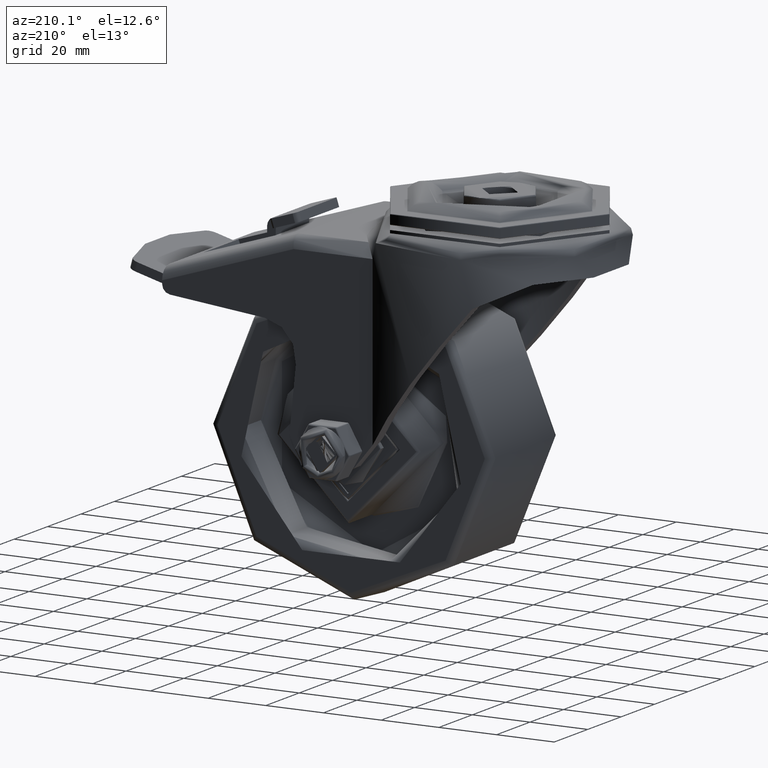
[diagram: clean part render]
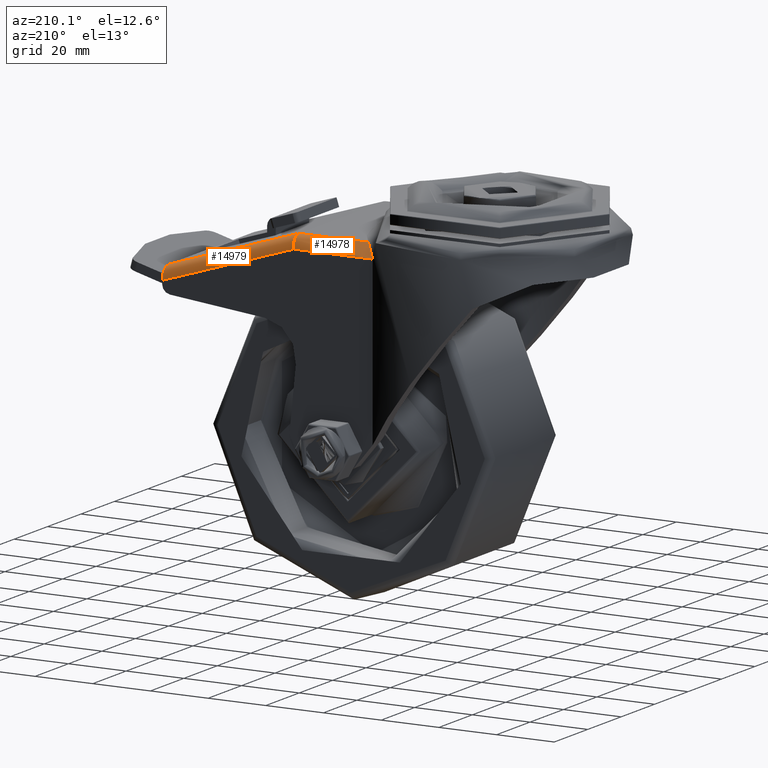
[diagram: same view with one multi-face feature highlighted, each face labeled with its STEP entity id]
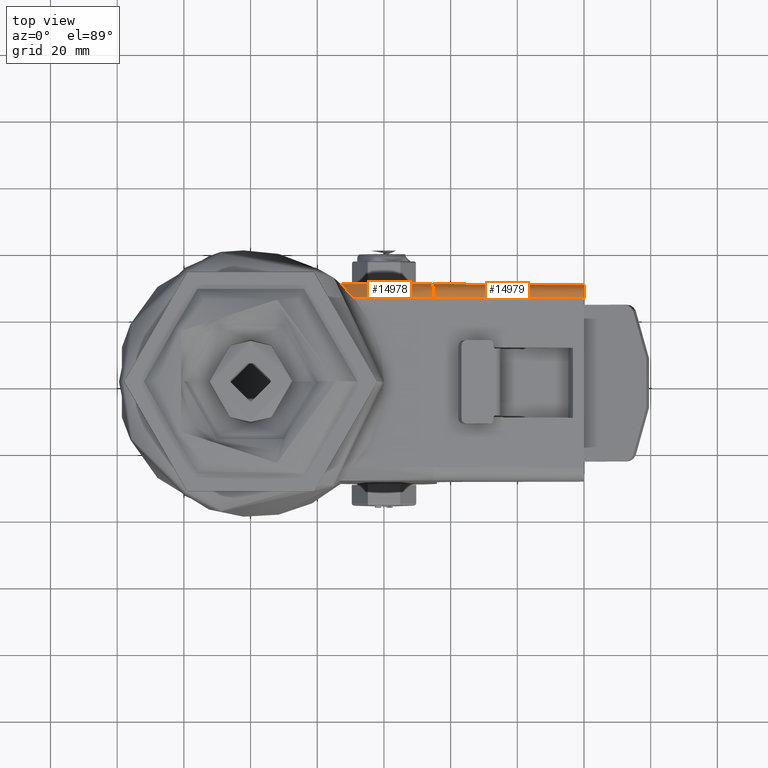
[diagram: same view with one multi-face feature highlighted, each face labeled with its STEP entity id]
A machine part, auxiliary view. The highlighted faces form ONE feature: a constant-radius fillet chain: 2 tangent blend faces with common blend radius 4 mm. The faces share edges in the B-rep.
A second angle (top view) of the same feature is appended — it is thin or edge-on in the first view.
Their STEP definitions:
[1] entity #14979 (Cylinder):
#495=ELLIPSE('',#16336,4.0490805380059,4.);
#496=ELLIPSE('',#16338,4.20252716444537,4.);
#1864=FACE_OUTER_BOUND('',#2763,.T.);
#2763=EDGE_LOOP('',(#10899,#10900,#10901,#10902));
#3826=LINE('',#22531,#4885);
#3827=LINE('',#22532,#4886);
#4885=VECTOR('',#18346,999.999999999999);
#4886=VECTOR('',#18347,999.999999999999);
#6682=VERTEX_POINT('',#22522);
#6683=VERTEX_POINT('',#22524);
#6684=VERTEX_POINT('',#22528);
#6685=VERTEX_POINT('',#22529);
#8295=EDGE_CURVE('',#6683,#6682,#495,.T.);
#8297=EDGE_CURVE('',#6684,#6685,#496,.T.);
#8298=EDGE_CURVE('',#6685,#6683,#3826,.T.);
#8299=EDGE_CURVE('',#6682,#6684,#3827,.T.);
#10899=ORIENTED_EDGE('',*,*,#8297,.T.);
#10900=ORIENTED_EDGE('',*,*,#8298,.T.);
#10901=ORIENTED_EDGE('',*,*,#8295,.T.);
#10902=ORIENTED_EDGE('',*,*,#8299,.T.);
#14653=CYLINDRICAL_SURFACE('',#16337,4.);
#14979=ADVANCED_FACE('',(#1864),#14653,.T.);
#16336=AXIS2_PLACEMENT_3D('',#22525,#18339,#18340);
#16337=AXIS2_PLACEMENT_3D('',#22527,#18342,#18343);
#16338=AXIS2_PLACEMENT_3D('',#22530,#18344,#18345);
#18339=DIRECTION('center_axis',(0.987878596746791,8.56848096595842E-15,
-0.155228470615386));
#18340=DIRECTION('ref_axis',(-0.155228470615386,-5.45300673217007E-14,-0.987878596746791));
#18342=DIRECTION('center_axis',(-0.951808243820811,-2.64697796016969E-17,
0.306693767453373));
#18343=DIRECTION('ref_axis',(0.21686524271393,0.707106781186548,0.673030063594954));
#18344=DIRECTION('center_axis',(-1.,0.,0.));
#18345=DIRECTION('ref_axis',(0.,2.06390513148027E-16,1.));
#18346=DIRECTION('',(-0.951808243820811,0.,0.306693767453373));
#18347=DIRECTION('',(0.951808243820811,0.,-0.306693767453373));
#22522=CARTESIAN_POINT('',(55.,25.5,-8.));
#22524=CARTESIAN_POINT('',(54.3714674206868,29.5,-12.));
#22525=CARTESIAN_POINT('Origin',(54.3714674206868,25.5,-12.));
#22527=CARTESIAN_POINT('Origin',(38.9422496477796,25.5,-7.02836316206324));
#22528=CARTESIAN_POINT('',(100.,25.5,-22.5));
#22529=CARTESIAN_POINT('',(100.,29.5,-26.7025271644454));
#22530=CARTESIAN_POINT('Origin',(100.,25.5,-26.7025271644454));
#22531=CARTESIAN_POINT('',(38.9422496477796,29.5,-7.02836316206324));
#22532=CARTESIAN_POINT('',(40.1690247175931,25.5,-3.22113018678));
[2] entity #14978 (Cylinder):
#495=ELLIPSE('',#16336,4.0490805380059,4.);
#533=B_SPLINE_CURVE_WITH_KNOTS('',3,(#22386,#22387,#22388,#22389,#22390,
#22391,#22392,#22393,#22394,#22395,#22396,#22397),.UNSPECIFIED.,.F.,.F.,
(4,2,2,2,2,4),(-2.11752355603505,-1.90909030812796,-1.70065706022087,-1.54937652298347,
-1.47373625436476,-1.39809598574606),.UNSPECIFIED.);
#1863=FACE_OUTER_BOUND('',#2762,.T.);
#2762=EDGE_LOOP('',(#10895,#10896,#10897,#10898));
#3824=LINE('',#22523,#4883);
#3825=LINE('',#22526,#4884);
#4883=VECTOR('',#18338,1000.);
#4884=VECTOR('',#18341,1000.);
#6670=VERTEX_POINT('',#22383);
#6671=VERTEX_POINT('',#22385);
#6682=VERTEX_POINT('',#22522);
#6683=VERTEX_POINT('',#22524);
#8280=EDGE_CURVE('',#6671,#6670,#533,.F.);
#8294=EDGE_CURVE('',#6670,#6682,#3824,.T.);
#8295=EDGE_CURVE('',#6683,#6682,#495,.T.);
#8296=EDGE_CURVE('',#6683,#6671,#3825,.T.);
#10895=ORIENTED_EDGE('',*,*,#8280,.T.);
#10896=ORIENTED_EDGE('',*,*,#8294,.T.);
#10897=ORIENTED_EDGE('',*,*,#8295,.F.);
#10898=ORIENTED_EDGE('',*,*,#8296,.T.);
#14652=CYLINDRICAL_SURFACE('',#16335,4.);
#14978=ADVANCED_FACE('',(#1863),#14652,.T.);
#16335=AXIS2_PLACEMENT_3D('',#22521,#18336,#18337);
#16336=AXIS2_PLACEMENT_3D('',#22525,#18339,#18340);
#18336=DIRECTION('center_axis',(1.,0.,0.));
#18337=DIRECTION('ref_axis',(0.,0.707106781186547,0.707106781186548));
#18338=DIRECTION('',(1.,0.,0.));
#18339=DIRECTION('center_axis',(0.987878596746791,8.56848096595842E-15,
-0.155228470615386));
#18340=DIRECTION('ref_axis',(-0.155228470615386,-5.45300673217007E-14,-0.987878596746791));
#18341=DIRECTION('',(-1.,0.,0.));
#22383=CARTESIAN_POINT('',(30.81801421247,25.5,-7.99999999999999));
#22385=CARTESIAN_POINT('',(27.0138853184802,29.5,-12.));
#22386=CARTESIAN_POINT('Ctrl Pts',(30.81801421247,25.5,-8.));
#22387=CARTESIAN_POINT('Ctrl Pts',(30.3750935606674,26.0352915663627,-8.));
#22388=CARTESIAN_POINT('Ctrl Pts',(29.8825558142731,26.5995071937736,-8.11222004767191));
#22389=CARTESIAN_POINT('Ctrl Pts',(28.922841122543,27.6400106055534,-8.57303290079966));
#22390=CARTESIAN_POINT('Ctrl Pts',(28.4557914143384,28.1169657300425,-8.92038277232231));
#22391=CARTESIAN_POINT('Ctrl Pts',(27.7870275442741,28.7756309567547,-9.66645662696622));
#22392=CARTESIAN_POINT('Ctrl Pts',(27.512743233664,29.0365195855324,-10.0674619178447));
#22393=CARTESIAN_POINT('Ctrl Pts',(27.2218028000451,29.3085495989748,-10.7528560637527));
#22394=CARTESIAN_POINT('Ctrl Pts',(27.1444021805916,29.3800344883443,-10.9952619329618));
#22395=CARTESIAN_POINT('Ctrl Pts',(27.0403975119848,29.4757849543869,-11.492752325304));
#22396=CARTESIAN_POINT('Ctrl Pts',(27.0138853184802,29.5,-11.747865771271));
#22397=CARTESIAN_POINT('Ctrl Pts',(27.0138853184802,29.5,-12.));
#22521=CARTESIAN_POINT('Origin',(23.125,25.5,-12.));
#22522=CARTESIAN_POINT('',(55.,25.5,-8.));
#22523=CARTESIAN_POINT('',(23.125,25.5,-8.00000000000001));
#22524=CARTESIAN_POINT('',(54.3714674206868,29.5,-12.));
#22525=CARTESIAN_POINT('Origin',(54.3714674206868,25.5,-12.));
#22526=CARTESIAN_POINT('',(23.125,29.5,-12.));